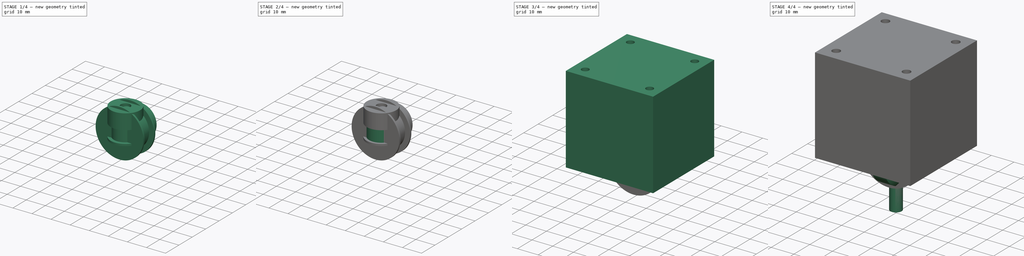
[diagram: build sequence overview — one tinted view per stage of 4, left to right]
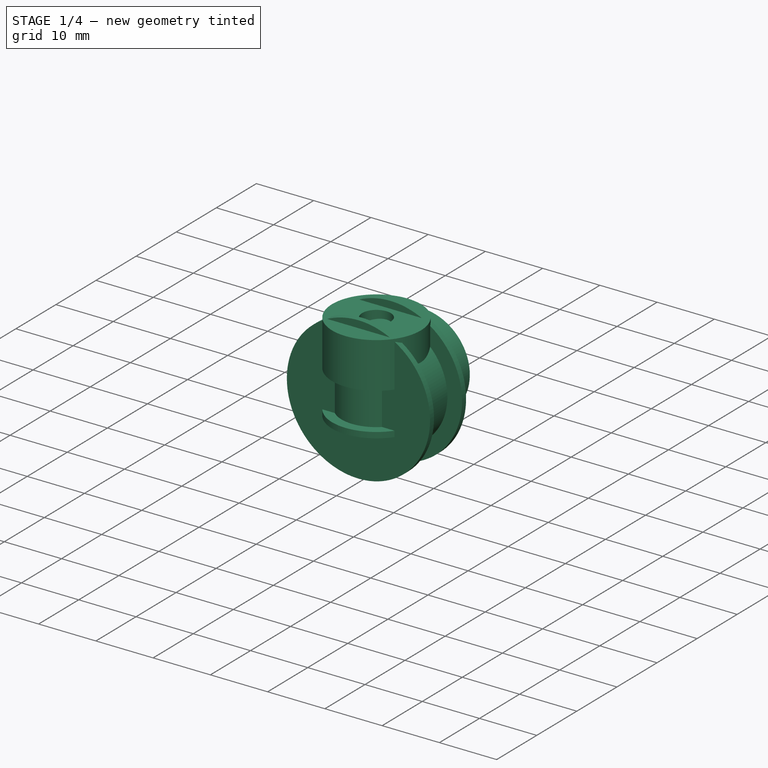
[diagram: stage 1 of 4 — iso view after this stage's code; geometry added in this stage tinted green]
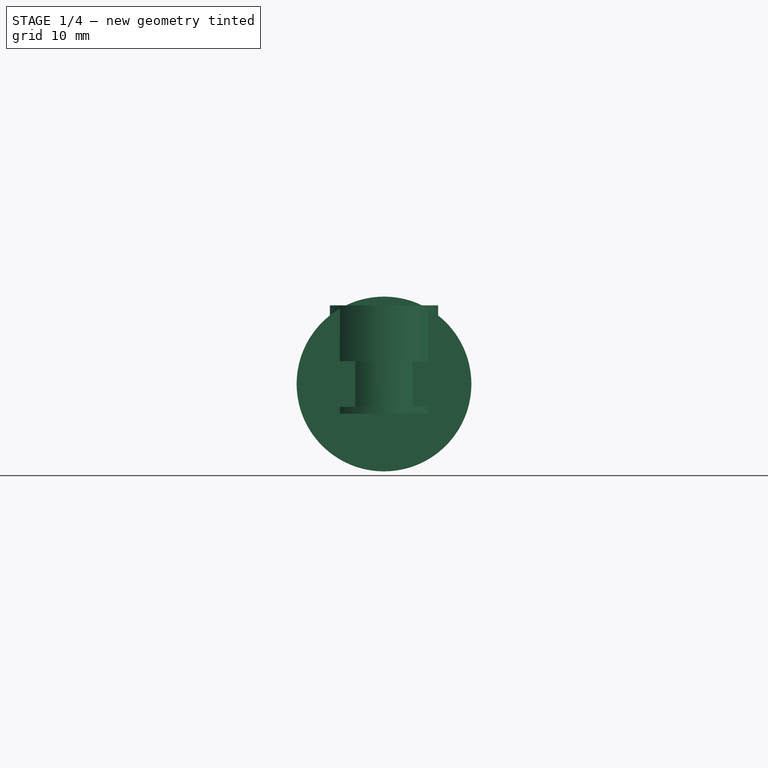
[diagram: stage 1 of 4 — front view after this stage's code; geometry added in this stage tinted green]
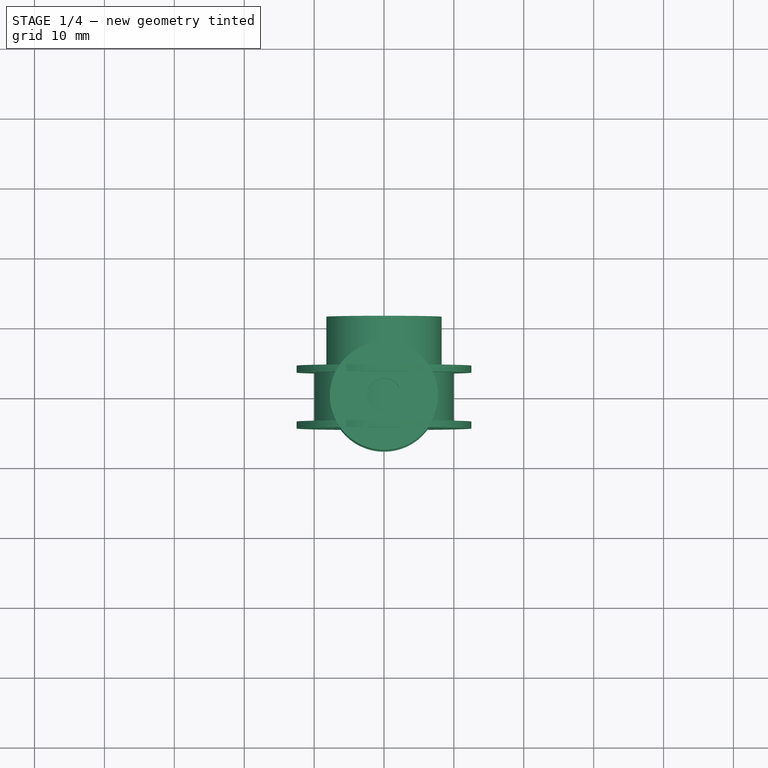
[diagram: stage 1 of 4 — top view after this stage's code; geometry added in this stage tinted green]
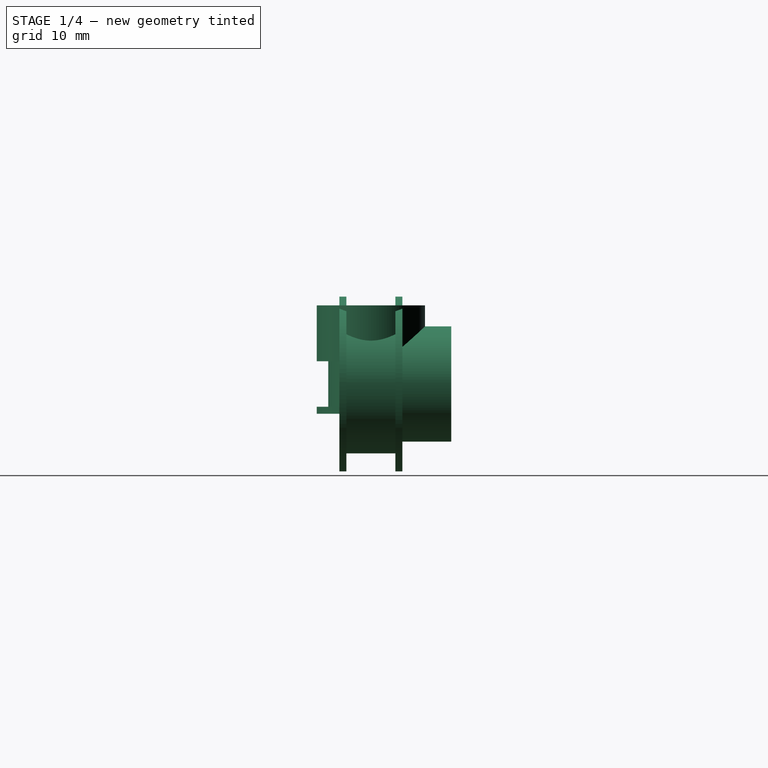
[diagram: stage 1 of 4 — right view after this stage's code; geometry added in this stage tinted green]
FCSTD DOCUMENT  (FreeCAD 1.0R38806 (Git))
Label: standard-stuff
License: All rights reserved
LicenseURL: http://en.wikipedia.org/wiki/All_rights_reserved
objects: Sketcher::SketchObject×13, PartDesign::Body×8, PartDesign::Pad×7, App::DocumentObjectGroup×4, PartDesign::Revolution×3, PartDesign::Pocket×3
note: 73 computed .brp shape members not serialized (recipe doc carries the construction recipe); baked Part::Feature solids carry a one-line shape summary decoded from their .brp

FEATURE [PartDesign::Body] Body071  label="pulley-20t-8mm"
  AllowCompound = false
  Group = -> [Sketch098,Pad029,Sketch099,Pocket047]
  Origin = -> Origin205
  Tip = -> Pocket047
FEATURE [Sketcher::SketchObject] Sketch167
  ArcFitTolerance = 0
  AttachmentSupport = -> [YZ_Plane236]
  FullyConstrained = true
  MakeInternals = false
  MapMode = 5
  Placement = pos=(0,0,0) rot=(0.57735,0.57735,0.57735;2.0944rad)
  sketch-geometry (10):
    g0: LineSegment StartX=-4.5 StartY=12.5 StartZ=0 EndX=-4.5 EndY=4 EndZ=0
    g1: LineSegment StartX=-4.5 StartY=4 StartZ=0 EndX=11.5 EndY=4 EndZ=0
    g2: LineSegment StartX=11.5 StartY=4 StartZ=0 EndX=11.5 EndY=8.25 EndZ=0
    g3: LineSegment StartX=11.5 StartY=8.25 StartZ=0 EndX=4.5 EndY=8.25 EndZ=0
    g4: LineSegment StartX=4.5 StartY=8.25 StartZ=0 EndX=4.5 EndY=12.5 EndZ=0
    g5: LineSegment StartX=4.5 StartY=12.5 StartZ=0 EndX=3.5 EndY=12.5 EndZ=0
    g6: LineSegment StartX=3.5 StartY=12.5 StartZ=0 EndX=3.5 EndY=9.93 EndZ=0
    g7: LineSegment StartX=3.5 StartY=9.93 StartZ=0 EndX=-3.5 EndY=9.93 EndZ=0
    g8: LineSegment StartX=-3.5 StartY=9.93 StartZ=0 EndX=-3.5 EndY=12.5 EndZ=0
    g9: LineSegment StartX=-3.5 StartY=12.5 StartZ=0 EndX=-4.5 EndY=12.5 EndZ=0
  constraints (28):
    c: Vertical(g0)
    c: Coincident(g1,g0)
    c: Horizontal(g1)
    c: Coincident(g2,g1)
    c: Vertical(g2)
    c: Coincident(g3,g2)
    c: Horizontal(g3)
    c: Coincident(g4,g3)
    c: Vertical(g4)
    c: Coincident(g5,g4)
    c: Horizontal(g5)
    c: Coincident(g6,g5)
    c: Vertical(g6)
    c: Coincident(g7,g6)
    c: Coincident(g8,g7)
    c: Vertical(g8)
    c: Coincident(g9,g8)
    c: Coincident(g9,g0)
    c: Horizontal(g9)
    c: Symmetric(g6,g7,g-2)
    c: Symmetric(g4,g0,g-2)
    c: DistanceX(g7,g7) = 7
    c: DistanceY(g5) = 12.5
    c: DistanceY(g6) = 9.93
    c: DistanceX(g0,g2) = 16
    c: DistanceY(g0) = 4
    c: DistanceY(g2) = 8.25
    c: DistanceX(g9,g9) = 1
FEATURE [PartDesign::Revolution] Revolution015
  Angle = 360
  Angle2 = 60
  Axis = (1e-16,1,-1e-16)
  Base = (0,0,0)
  Placement = pos=(0,0,0) rot=(1,1,1;2.0944rad)
  Profile = -> Sketch167
  ReferenceAxis = -> Y_Axis237
  Suppressed = false
  Type = 0
FEATURE [PartDesign::Body] Body103  label="pulley-32t-8mm"
  AllowCompound = false
  Group = -> [Sketch167,Revolution015]
  Origin = -> Origin237
  Tip = -> Revolution015
FEATURE [Sketcher::SketchObject] Sketch240
  ArcFitTolerance = 0
  AttachmentSupport = -> [XY_Plane252]
  FullyConstrained = true
  MakeInternals = false
  MapMode = 5
  sketch-geometry (2):
    g0: Circle CenterX=0 CenterY=0 CenterZ=0 NormalX=0 NormalY=0 NormalZ=1 AngleXU=0 Radius=7.75
    g1: Circle CenterX=0 CenterY=0 CenterZ=0 NormalX=0 NormalY=0 NormalZ=1 AngleXU=0 Radius=2.5
  constraints (4):
    c: Coincident(g0,g-1)
    c: Diameter(g0) = 15.5
    c: Coincident(g1,g0)
    c: Diameter(g1) = 5
FEATURE [PartDesign::Pad] Pad058
  Direction = (0,0,1)
  Length = 11.25
  Length2 = 4.25
  Profile = -> Sketch240
  ReferenceAxis = -> Sketch240 [N_Axis]
  Suppressed = false
  Type = 4
FEATURE [Sketcher::SketchObject] Sketch241
  ArcFitTolerance = 0
  AttachmentSupport = -> [XY_Plane252]
  FullyConstrained = true
  MakeInternals = false
  MapMode = 5
  sketch-geometry (2):
    g0: Circle CenterX=0 CenterY=0 CenterZ=0 NormalX=0 NormalY=0 NormalZ=1 AngleXU=0 Radius=6.1
    g1: Circle CenterX=0 CenterY=0 CenterZ=0 NormalX=0 NormalY=0 NormalZ=1 AngleXU=0 Radius=7.75
  constraints (4):
    c: Coincident(g0,g-1)
    c: Coincident(g1,g0)
    c: Diameter(g1) = 15.5
    c: Diameter(g0) = 12.2
FEATURE [PartDesign::Pocket] Pocket147
  BaseFeature = -> Pad058
  Direction = (0,0,-1)
  Length = 6.5
  Length2 = 5
  Midplane = true
  Profile = -> Sketch241
  ReferenceAxis = -> Sketch241 [N_Axis]
  Suppressed = false
  Type = 0
FEATURE [PartDesign::Body] Body119  label="pulley-20t-5mm"
  AllowCompound = false
  Group = -> [Sketch240,Pad058,Sketch241,Pocket147]
  Origin = -> Origin253
  Tip = -> Pocket147
FEATURE [App::DocumentObjectGroup] Group001  label="gt2-pulleys"
  Group = -> [Body119,Body065,Body071,Body103]
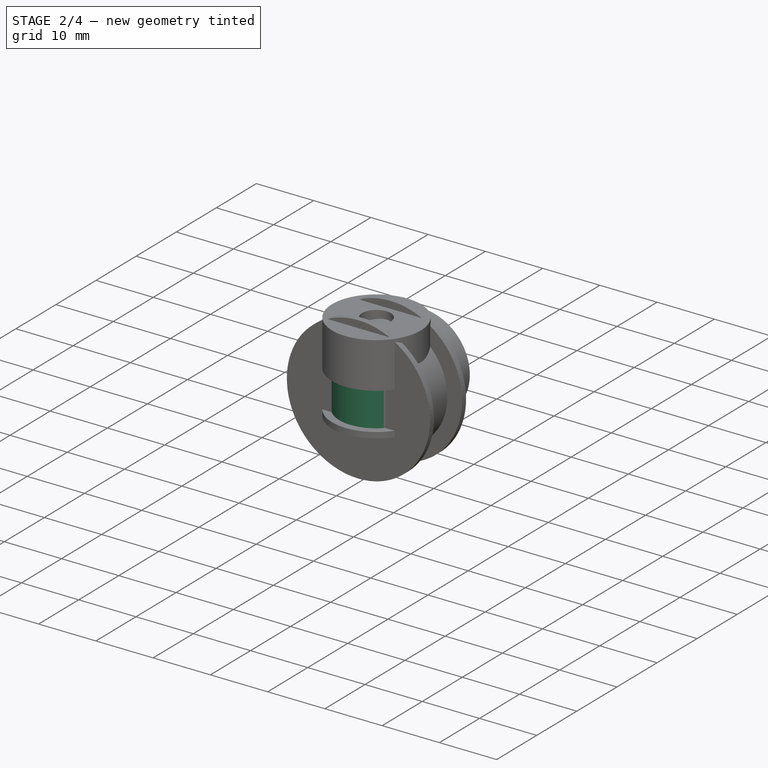
[diagram: stage 2 of 4 — iso view after this stage's code; geometry added in this stage tinted green]
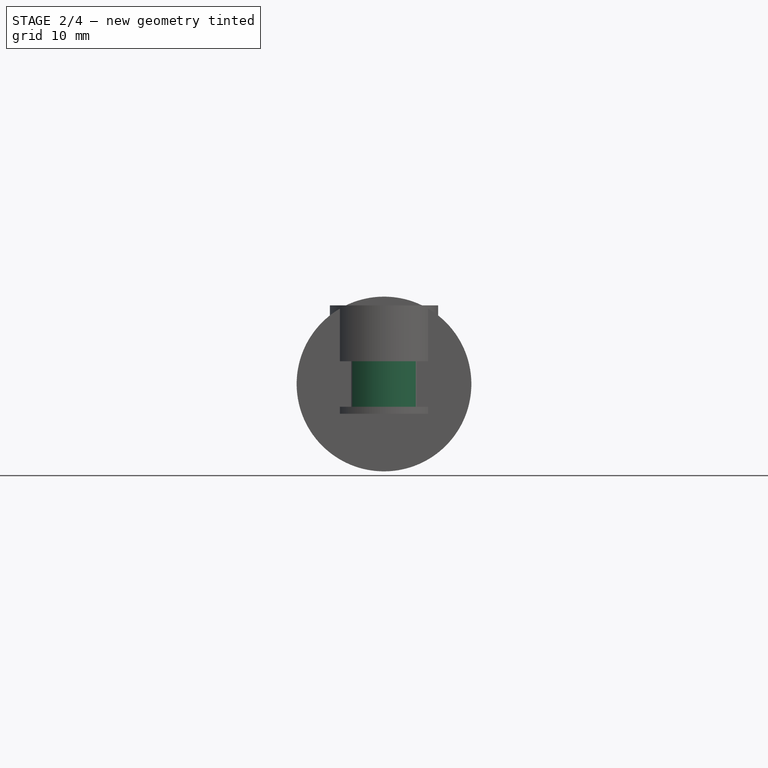
[diagram: stage 2 of 4 — front view after this stage's code; geometry added in this stage tinted green]
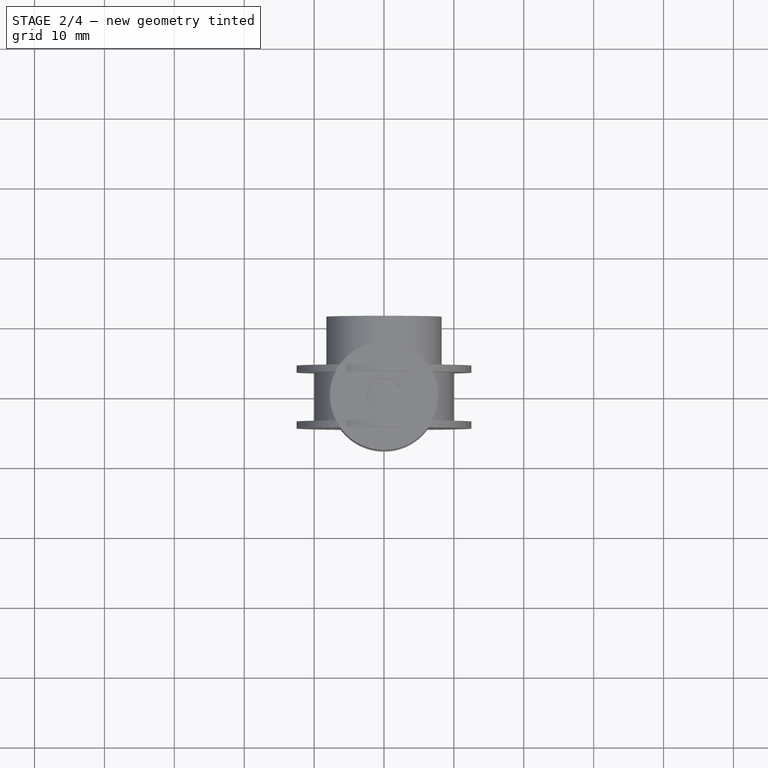
[diagram: stage 2 of 4 — top view after this stage's code; geometry added in this stage tinted green]
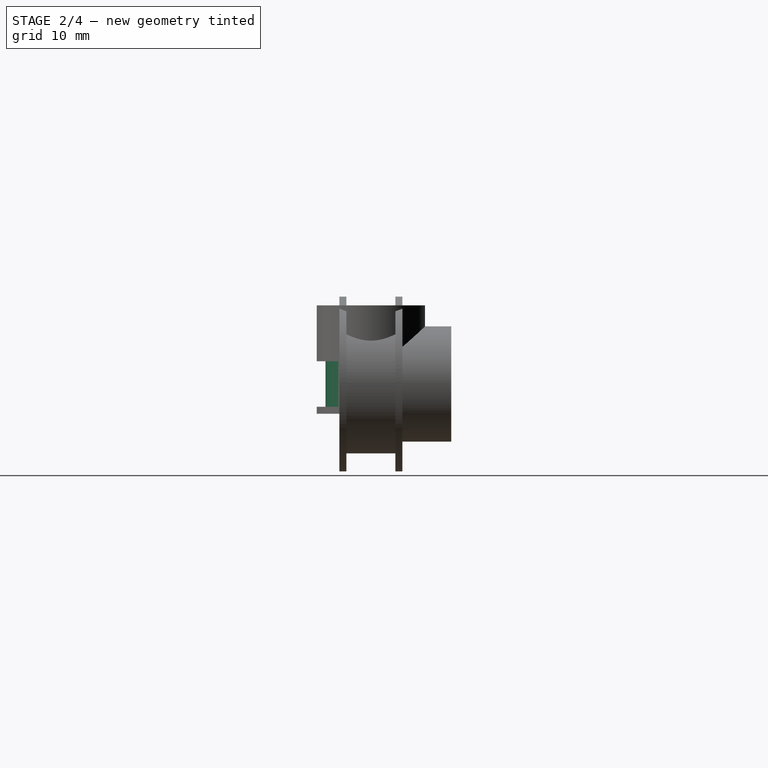
[diagram: stage 2 of 4 — right view after this stage's code; geometry added in this stage tinted green]
FEATURE [PartDesign::Body] Body  label="bearing-608"
  AllowCompound = false
  Group = -> [Sketch,Pad]
  Origin = -> Origin
  Tip = -> Pad
FEATURE [App::DocumentObjectGroup] Group003  label="bearings"
  Group = -> [Body]
FEATURE [Sketcher::SketchObject] Sketch095
  ArcFitTolerance = 0
  AttachmentSupport = -> [XY_Plane199]
  FullyConstrained = true
  MakeInternals = false
  MapMode = 5
  sketch-geometry (2):
    g0: Circle CenterX=0 CenterY=0 CenterZ=0 NormalX=0 NormalY=0 NormalZ=1 AngleXU=0 Radius=6.5
    g1: Circle CenterX=0 CenterY=0 CenterZ=0 NormalX=0 NormalY=0 NormalZ=1 AngleXU=0 Radius=2.55
  constraints (4):
    c: Coincident(g0,g-1)
    c: Diameter(g0) = 13
    c: Coincident(g1,g0)
    c: Diameter(g1) = 5.1
FEATURE [PartDesign::Pad] Pad026
  Direction = (0,0,1)
  Length = 9.75
  Length2 = 4.25
  Profile = -> Sketch095
  ReferenceAxis = -> Sketch095 [N_Axis]
  Suppressed = false
  Type = 4
FEATURE [PartDesign::Body] Body065  label="pulley-16t-5mm"
  AllowCompound = false
  Group = -> [Sketch095,Pad026,Sketch096,Pocket046]
  Origin = -> Origin199
  Tip = -> Pocket046
FEATURE [Sketcher::SketchObject] Sketch098
  ArcFitTolerance = 0
  AttachmentSupport = -> [XY_Plane205]
  FullyConstrained = true
  MakeInternals = false
  MapMode = 5
  sketch-geometry (2):
    g0: Circle CenterX=0 CenterY=0 CenterZ=0 NormalX=0 NormalY=0 NormalZ=1 AngleXU=0 Radius=7.75
    g1: Circle CenterX=0 CenterY=0 CenterZ=0 NormalX=0 NormalY=0 NormalZ=1 AngleXU=0 Radius=4
  constraints (4):
    c: Coincident(g0,g-1)
    c: Diameter(g0) = 15.5
    c: Coincident(g1,g0)
    c: Diameter(g1) = 8
FEATURE [PartDesign::Pad] Pad029
  Direction = (0,0,1)
  Length = 11.25
  Length2 = 4.25
  Profile = -> Sketch098
  ReferenceAxis = -> Sketch098 [N_Axis]
  Suppressed = false
  Type = 4
FEATURE [Sketcher::SketchObject] Sketch099
  ArcFitTolerance = 0
  AttachmentSupport = -> [XY_Plane205]
  FullyConstrained = true
  MakeInternals = false
  MapMode = 5
  sketch-geometry (2):
    g0: Circle CenterX=0 CenterY=0 CenterZ=0 NormalX=0 NormalY=0 NormalZ=1 AngleXU=0 Radius=6.1
    g1: Circle CenterX=0 CenterY=0 CenterZ=0 NormalX=0 NormalY=0 NormalZ=1 AngleXU=0 Radius=7.75
  constraints (4):
    c: Coincident(g0,g-1)
    c: Coincident(g1,g0)
    c: Diameter(g1) = 15.5
    c: Diameter(g0) = 12.2
FEATURE [PartDesign::Pocket] Pocket047
  BaseFeature = -> Pad029
  Direction = (0,0,-1)
  Length = 6.5
  Length2 = 5
  Midplane = true
  Profile = -> Sketch099
  ReferenceAxis = -> Sketch099 [N_Axis]
  Suppressed = false
  Type = 0
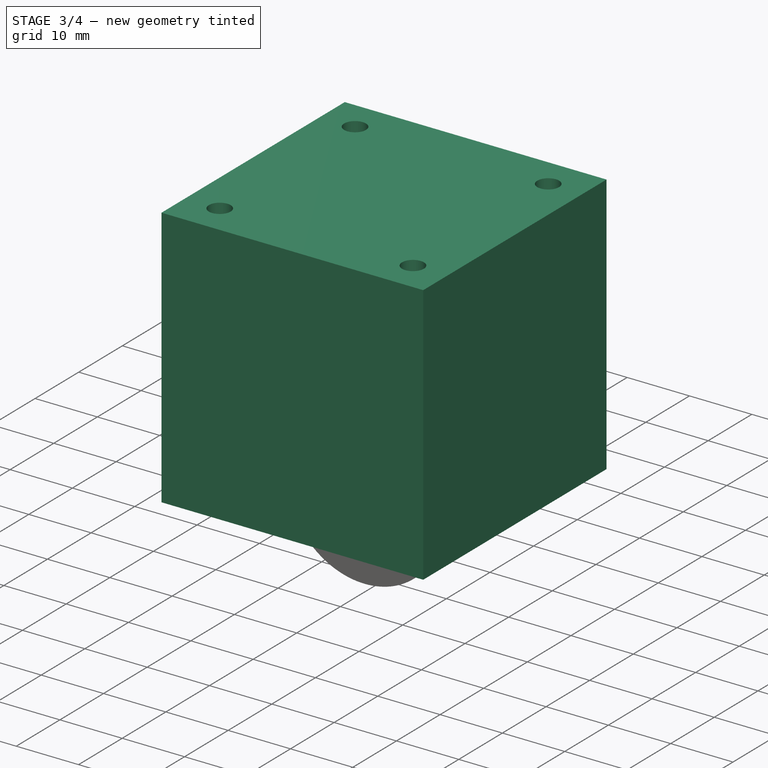
[diagram: stage 3 of 4 — iso view after this stage's code; geometry added in this stage tinted green]
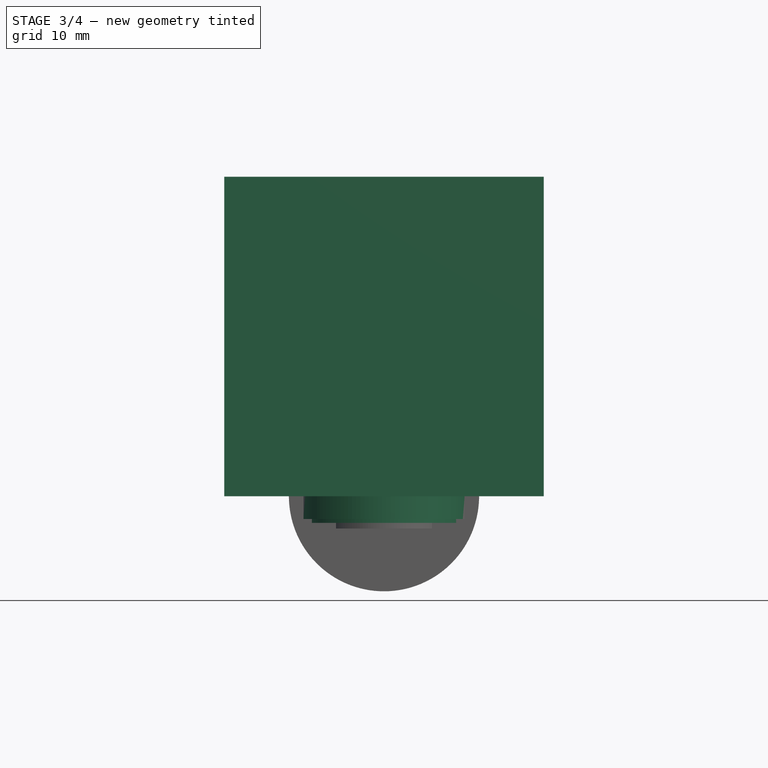
[diagram: stage 3 of 4 — front view after this stage's code; geometry added in this stage tinted green]
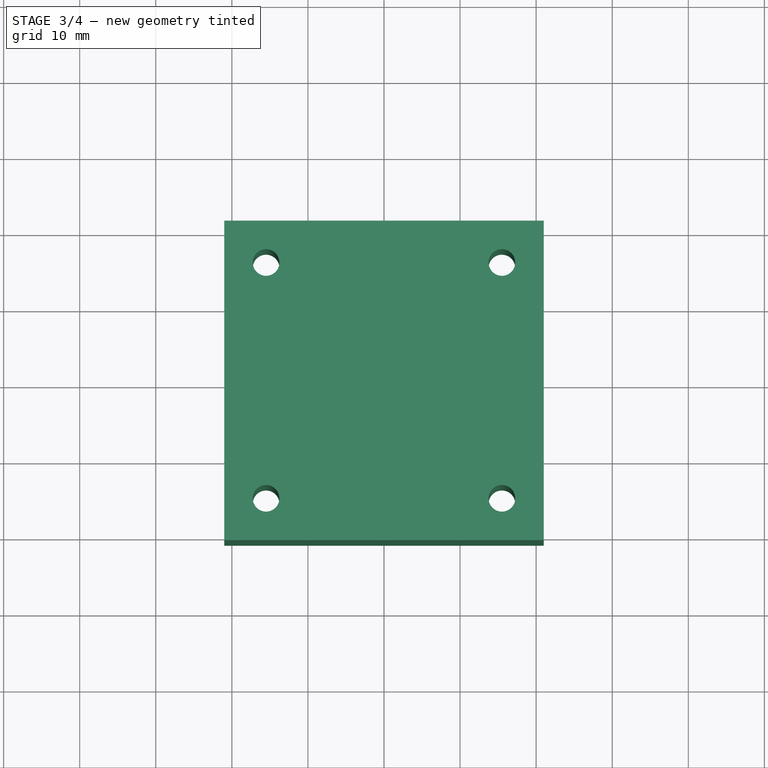
[diagram: stage 3 of 4 — top view after this stage's code; geometry added in this stage tinted green]
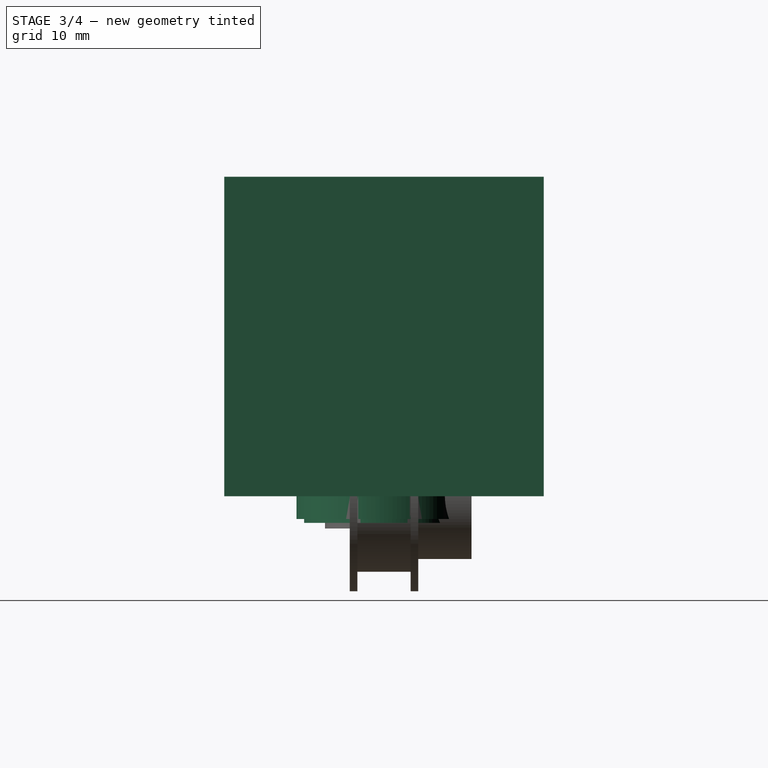
[diagram: stage 3 of 4 — right view after this stage's code; geometry added in this stage tinted green]
FEATURE [PartDesign::Body] Body033  label="v-wheel"
  AllowCompound = false
  Group = -> [Sketch029,Revolution]
  Origin = -> Origin033
  Tip = -> Revolution
FEATURE [Sketcher::SketchObject] Sketch007
  ArcFitTolerance = 0
  AttachmentSupport = -> [XY_Plane018]
  FullyConstrained = true
  MakeInternals = false
  MapMode = 5
  sketch-geometry (10):
    g0: LineSegment StartX=-21 StartY=21 StartZ=0 EndX=21 EndY=21 EndZ=0
    g1: LineSegment StartX=21 StartY=21 StartZ=0 EndX=21 EndY=-21 EndZ=0
    g2: LineSegment StartX=21 StartY=-21 StartZ=0 EndX=-21 EndY=-21 EndZ=0
    g3: LineSegment StartX=-21 StartY=-21 StartZ=0 EndX=-21 EndY=21 EndZ=0
    g4: Circle CenterX=-15.5 CenterY=15.5 CenterZ=0 NormalX=0 NormalY=0 NormalZ=1 AngleXU=0 Radius=1.75
    g5: Circle CenterX=15.5 CenterY=15.5 CenterZ=0 NormalX=0 NormalY=0 NormalZ=1 AngleXU=0 Radius=1.75
    g6: Circle CenterX=15.5 CenterY=-15.5 CenterZ=0 NormalX=0 NormalY=0 NormalZ=1 AngleXU=0 Radius=1.75
    g7: Circle CenterX=-15.5 CenterY=-15.5 CenterZ=0 NormalX=0 NormalY=0 NormalZ=1 AngleXU=0 Radius=1.75
    g8: LineSegment [constr] StartX=15.5 StartY=15.5 StartZ=0 EndX=-15.5 EndY=15.5 EndZ=0
    g9: LineSegment [constr] StartX=15.5 StartY=15.5 StartZ=0 EndX=15.5 EndY=-15.5 EndZ=0
  constraints (26):
    c: Coincident(g0,g1)
    c: Coincident(g1,g2)
    c: Coincident(g2,g3)
    c: Coincident(g3,g0)
    c: Horizontal(g0)
    c: Horizontal(g2)
    c: Vertical(g1)
    c: Vertical(g3)
    c: Equal(g2,g1)
    c: DistanceX(g0,g0) = 42
    c: Symmetric(g0,g2,g-1)
    c: Symmetric(g7,g5,g-1)
    c: Vertical(g6,g5)
    c: Horizontal(g5,g4)
    c: Vertical(g4,g7)
    c: Horizontal(g7,g6)
    c: Equal(g6,g5)
    c: Equal(g5,g4)
    c: Equal(g4,g7)
    c: Diameter(g5) = 3.5
    c: Coincident(g8,g5)
    c: Coincident(g8,g4)
    c: Coincident(g9,g5)
    c: Coincident(g9,g6)
    c: Equal(g9,g8)
    c: DistanceX(g8,g8) = 31
FEATURE [PartDesign::Pad] Pad005
  Direction = (0,0,1)
  Length = 42
  Length2 = 10
  Profile = -> Sketch007
  ReferenceAxis = -> Sketch007 [N_Axis]
  Suppressed = false
  Type = 0
FEATURE [Sketcher::SketchObject] Sketch008
  ArcFitTolerance = 0
  AttachmentSupport = -> [XY_Plane018]
  FullyConstrained = true
  MakeInternals = false
  MapMode = 5
  sketch-geometry (1):
    g0: Circle CenterX=0 CenterY=0 CenterZ=0 NormalX=0 NormalY=0 NormalZ=1 AngleXU=0 Radius=11.5
  constraints (2):
    c: Coincident(g0,g-1)
    c: Diameter(g0) = 23
FEATURE [PartDesign::Pad] Pad006
  BaseFeature = -> Pad005
  Direction = (0,0,1)
  Length = 3
  Length2 = 10
  Profile = -> Sketch008
  ReferenceAxis = -> Sketch008 [N_Axis]
  Reversed = true
  Suppressed = false
  Type = 0
FEATURE [PartDesign::Body] Body018  label="nema-17"
  AllowCompound = false
  Group = -> [Sketch007,Pad005,Sketch008,Pad006,Sketch009,Pad007]
  Origin = -> Origin018
  Tip = -> Pad007
FEATURE [App::DocumentObjectGroup] Group002  label="stepper-motors"
  Group = -> [Body018]
FEATURE [Sketcher::SketchObject] Sketch
  ArcFitTolerance = 1e-06
  AttachmentSupport = -> [XY_Plane]
  FullyConstrained = true
  MakeInternals = false
  MapMode = 5
  sketch-geometry (2):
    g0: Circle CenterX=0 CenterY=0 CenterZ=0 NormalX=0 NormalY=0 NormalZ=1 AngleXU=0 Radius=4
    g1: Circle CenterX=0 CenterY=0 CenterZ=0 NormalX=0 NormalY=0 NormalZ=1 AngleXU=0 Radius=10.5
  constraints (4):
    c: Coincident(g0,g-1)
    c: Coincident(g1,g0)
    c: Diameter(g0) = 8
    c: Diameter(g1) = 21
FEATURE [PartDesign::Pad] Pad
  Direction = (0,0,1)
  Length = 7
  Length2 = 10
  Midplane = true
  Profile = -> Sketch
  ReferenceAxis = -> Sketch [N_Axis]
  Suppressed = false
  Type = 0
FEATURE [Sketcher::SketchObject] Sketch096
  ArcFitTolerance = 0
  AttachmentSupport = -> [XY_Plane199]
  FullyConstrained = true
  MakeInternals = false
  MapMode = 5
  sketch-geometry (2):
    g0: Circle CenterX=0 CenterY=0 CenterZ=0 NormalX=0 NormalY=0 NormalZ=1 AngleXU=0 Radius=4.75
    g1: Circle CenterX=0 CenterY=0 CenterZ=0 NormalX=0 NormalY=0 NormalZ=1 AngleXU=0 Radius=6.5
  constraints (4):
    c: Coincident(g0,g-1)
    c: Coincident(g1,g0)
    c: Diameter(g0) = 9.5
    c: Diameter(g1) = 13
FEATURE [PartDesign::Pocket] Pocket046
  BaseFeature = -> Pad026
  Direction = (0,0,-1)
  Length = 6.5
  Length2 = 5
  Midplane = true
  Profile = -> Sketch096
  ReferenceAxis = -> Sketch096 [N_Axis]
  Suppressed = false
  Type = 0
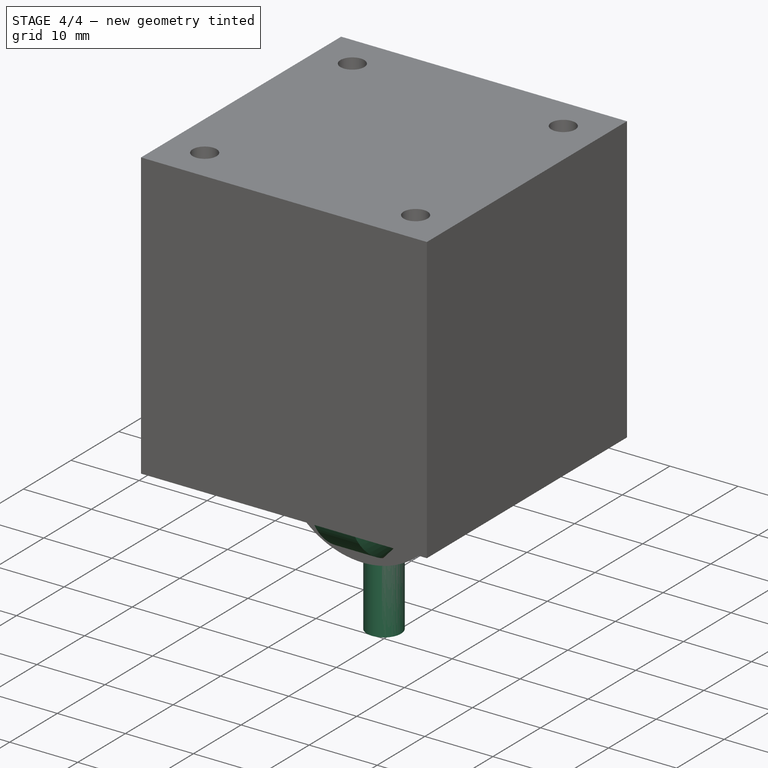
[diagram: stage 4 of 4 — iso view after this stage's code; geometry added in this stage tinted green]
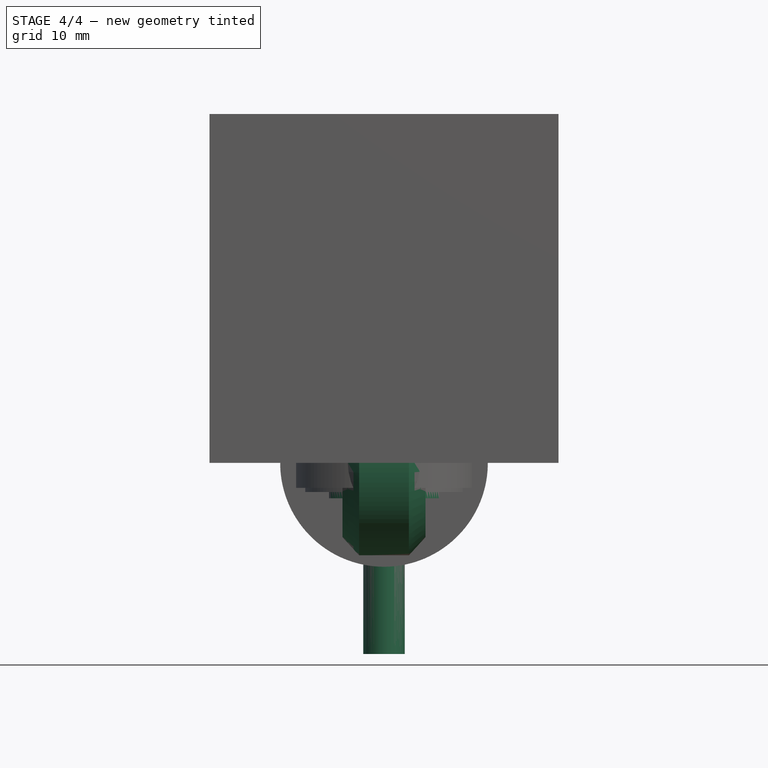
[diagram: stage 4 of 4 — front view after this stage's code; geometry added in this stage tinted green]
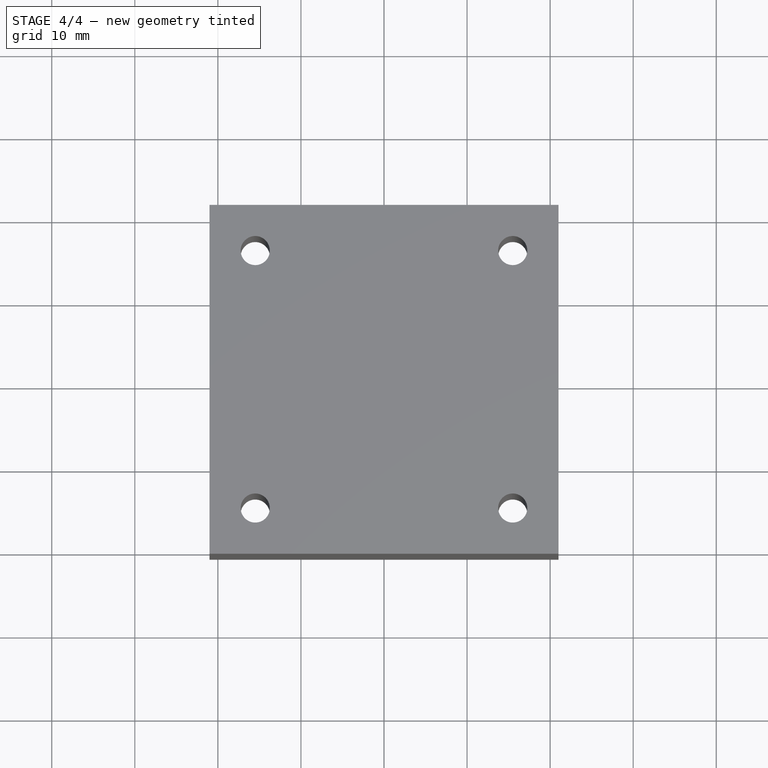
[diagram: stage 4 of 4 — top view after this stage's code; geometry added in this stage tinted green]
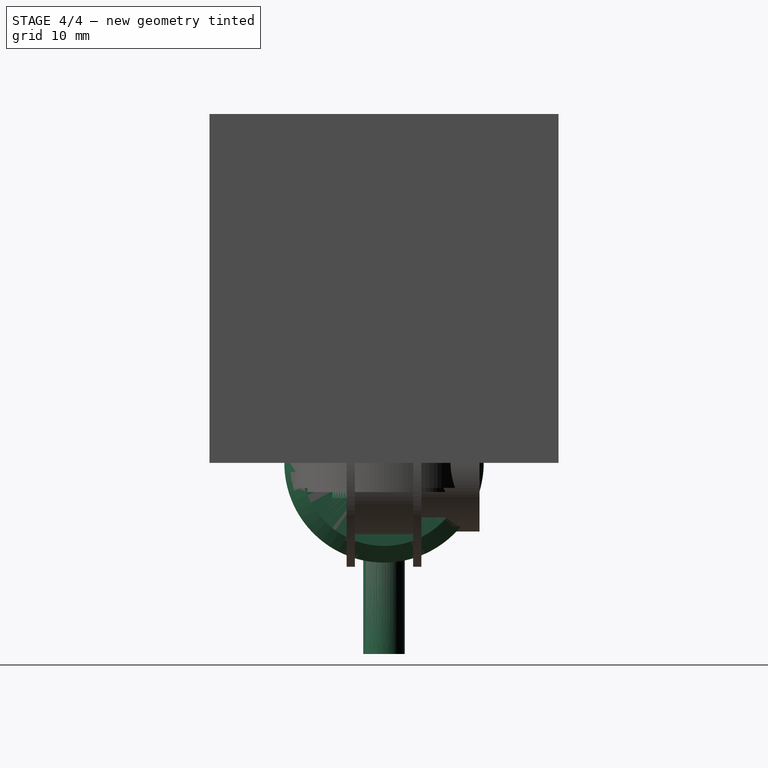
[diagram: stage 4 of 4 — right view after this stage's code; geometry added in this stage tinted green]
FEATURE [Sketcher::SketchObject] Sketch129
  ArcFitTolerance = 0
  AttachmentSupport = -> [XZ_Plane218]
  FullyConstrained = true
  MakeInternals = false
  MapMode = 5
  Placement = pos=(0,0,0) rot=(1,0,0;1.5708rad)
  sketch-geometry (8):
    g0: LineSegment StartX=2.5 StartY=4.25 StartZ=0 EndX=2.5 EndY=-4.25 EndZ=0
    g1: LineSegment StartX=2.5 StartY=-4.25 StartZ=0 EndX=8 EndY=-4.25 EndZ=0
    g2: LineSegment StartX=8 StartY=-4.25 StartZ=0 EndX=8 EndY=-3.25 EndZ=0
    g3: LineSegment StartX=8 StartY=-3.25 StartZ=0 EndX=6.1 EndY=-3.25 EndZ=0
    g4: LineSegment StartX=6.1 StartY=-3.25 StartZ=0 EndX=6.1 EndY=3.25 EndZ=0
    g5: LineSegment StartX=6.1 StartY=3.25 StartZ=0 EndX=8 EndY=3.25 EndZ=0
    g6: LineSegment StartX=8 StartY=3.25 StartZ=0 EndX=8 EndY=4.25 EndZ=0
    g7: LineSegment StartX=8 StartY=4.25 StartZ=0 EndX=2.5 EndY=4.25 EndZ=0
  constraints (22):
    c: Coincident(g1,g0)
    c: Coincident(g2,g1)
    c: Coincident(g3,g2)
    c: Coincident(g4,g3)
    c: Vertical(g6)
    c: Coincident(g7,g6)
    c: Coincident(g7,g0)
    c: Coincident(g6,g5)
    c: Horizontal(g1)
    c: Horizontal(g3)
    c: Horizontal(g5)
    c: Coincident(g5,g4)
    c: Vertical(g2)
    c: Horizontal(g7)
    c: Symmetric(g1,g6,g-1)
    c: Symmetric(g4,g3,g-1)
    c: DistanceY(g2,g2) = 1
    c: DistanceY(g4,g4) = 6.5
    c: DistanceX(g4) = 6.1
    c: Vertical(g0)
    c: DistanceX(g0) = 2.5
    c: DistanceX(g6) = 8
FEATURE [PartDesign::Revolution] Revolution014
  Angle = 360
  Angle2 = 60
  Axis = (0,2e-16,1)
  Base = (0,0,0)
  Placement = pos=(0,0,0) rot=(1,0,0;1.5708rad)
  Profile = -> Sketch129
  ReferenceAxis = -> Sketch129 [V_Axis]
  Reversed = true
  Suppressed = false
  Type = 0
FEATURE [PartDesign::Body] Body084  label="idler-20t"
  AllowCompound = false
  Group = -> [Sketch129,Revolution014]
  Origin = -> Origin218
  Tip = -> Revolution014
FEATURE [App::DocumentObjectGroup] Group  label="gt2-idlers"
  Group = -> [Body084]
FEATURE [Sketcher::SketchObject] Sketch029
  ArcFitTolerance = 0
  AttachmentSupport = -> [XY_Plane033]
  FullyConstrained = true
  MakeInternals = false
  MapMode = 5
  sketch-geometry (6):
    g0: LineSegment StartX=-5 StartY=-10 StartZ=0 EndX=-3 EndY=-12 EndZ=0
    g1: LineSegment StartX=-3 StartY=-12 StartZ=0 EndX=3 EndY=-12 EndZ=0
    g2: LineSegment StartX=3 StartY=-12 StartZ=0 EndX=5 EndY=-10 EndZ=0
    g3: LineSegment StartX=5 StartY=-10 StartZ=0 EndX=5 EndY=-2.5 EndZ=0
    g4: LineSegment StartX=5 StartY=-2.5 StartZ=0 EndX=-5 EndY=-2.5 EndZ=0
    g5: LineSegment StartX=-5 StartY=-2.5 StartZ=0 EndX=-5 EndY=-10 EndZ=0
  constraints (15):
    c: Coincident(g1,g0)
    c: Coincident(g2,g1)
    c: Coincident(g3,g2)
    c: Vertical(g3)
    c: Coincident(g4,g3)
    c: Coincident(g5,g4)
    c: Coincident(g5,g0)
    c: Symmetric(g4,g3,g-2)
    c: Symmetric(g0,g2,g-2)
    c: Symmetric(g0,g1,g-2)
    c: Angle(g2) = 0.785398
    c: DistanceY(g1) = -12
    c: DistanceX(g4,g4) = 10
    c: DistanceX(g1,g1) = 6
    c: DistanceY(g4) = -2.5
FEATURE [PartDesign::Revolution] Revolution
  Angle = 360
  Angle2 = 60
  Axis = (1,0,0)
  Base = (0,0,0)
  Profile = -> Sketch029
  ReferenceAxis = -> Sketch029 [H_Axis]
  Reversed = true
  Suppressed = false
  Type = 0
FEATURE [Sketcher::SketchObject] Sketch009
  ArcFitTolerance = 0
  AttachmentOffset = pos=(0,0,-3) rot=(0,0,1;0rad)
  AttachmentSupport = -> [XY_Plane018]
  FullyConstrained = true
  MakeInternals = false
  MapMode = 5
  Placement = pos=(0,0,-3) rot=(0,0,1;0rad)
  sketch-geometry (1):
    g0: Circle CenterX=0 CenterY=0 CenterZ=0 NormalX=0 NormalY=0 NormalZ=1 AngleXU=0 Radius=2.5
  constraints (2):
    c: Coincident(g0,g-1)
    c: Diameter(g0) = 5
FEATURE [PartDesign::Pad] Pad007
  BaseFeature = -> Pad006
  Direction = (0,0,1)
  Length = 20
  Length2 = 10
  Profile = -> Sketch009
  ReferenceAxis = -> Sketch009 [N_Axis]
  Reversed = true
  Suppressed = false
  Type = 0
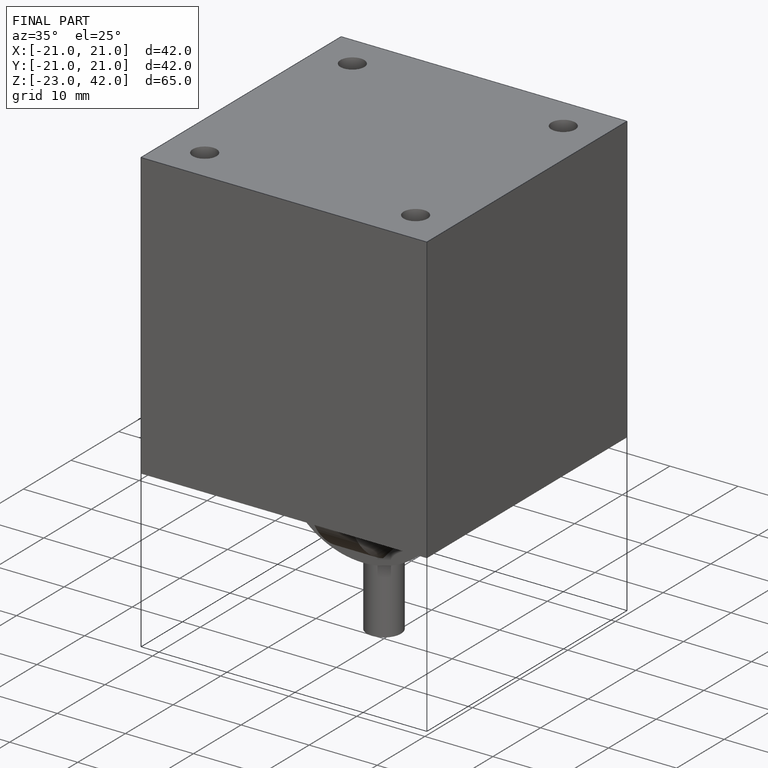
[diagram: finished part — iso view with bounding-box wireframe]
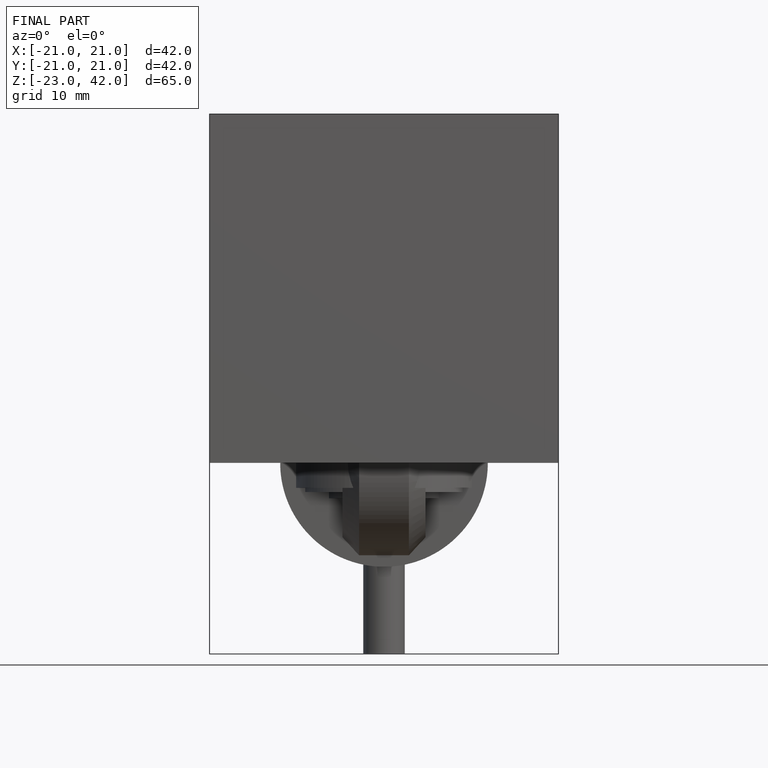
[diagram: finished part — front view with bounding-box wireframe]
